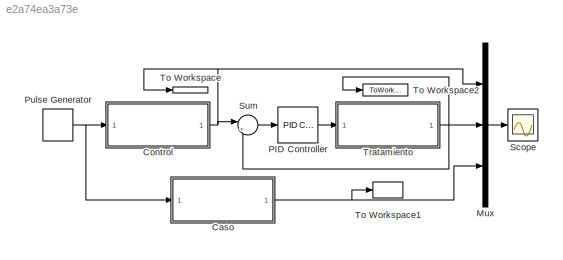
MODEL slx_e2a74ea3a73e
KIND model
CONFIG AbsTol = auto
CONFIG EnableMultiTasking = off
CONFIG FixedStep = auto
CONFIG MaxStep = 1E-3
CONFIG MinStep = auto
CONFIG RelTol = 1e-3
CONFIG SampleTimeConstraint = Unconstrained
CONFIG SolverName = ode15s
CONFIG StartTime = 0.0
CONFIG StopTime = 10.0
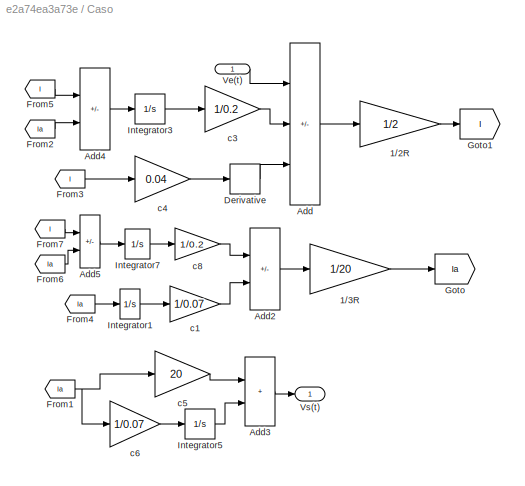
BLOCK [SubSystem] Caso
BLOCK [Gain] Caso/1//2R
  Gain = 1/2
BLOCK [Gain] Caso/1//3R
  Gain = 1/20
BLOCK [Sum] Caso/Add
  IconShape = rectangular
  Inputs = +--
BLOCK [Sum] Caso/Add2
  IconShape = rectangular
  Inputs = +-
BLOCK [Sum] Caso/Add3
  IconShape = rectangular
BLOCK [Sum] Caso/Add4
  IconShape = rectangular
  Inputs = +-
BLOCK [Sum] Caso/Add5
  IconShape = rectangular
  Inputs = +-
BLOCK [Derivative] Caso/Derivative
BLOCK [From] Caso/From1
  GotoTag = Ia
BLOCK [From] Caso/From2
  GotoTag = Ia
BLOCK [From] Caso/From3
  GotoTag = I
BLOCK [From] Caso/From4
  GotoTag = Ia
BLOCK [From] Caso/From5
  GotoTag = I
BLOCK [From] Caso/From6
  GotoTag = Ia
BLOCK [From] Caso/From7
  GotoTag = I
BLOCK [Goto] Caso/Goto
  GotoTag = Ia
BLOCK [Goto] Caso/Goto1
  GotoTag = I
BLOCK [Integrator] Caso/Integrator1
BLOCK [Integrator] Caso/Integrator3
BLOCK [Integrator] Caso/Integrator5
BLOCK [Integrator] Caso/Integrator7
BLOCK [Inport] Caso/Ve(t)
BLOCK [Outport] Caso/Vs(t)
BLOCK [Gain] Caso/c1
  Gain = 1/0.07
BLOCK [Gain] Caso/c3
  Gain = 1/0.2
BLOCK [Gain] Caso/c4
  Gain = 0.04
BLOCK [Gain] Caso/c5
  Gain = 20
BLOCK [Gain] Caso/c6
  Gain = 1/0.07
BLOCK [Gain] Caso/c8
  Gain = 1/0.2
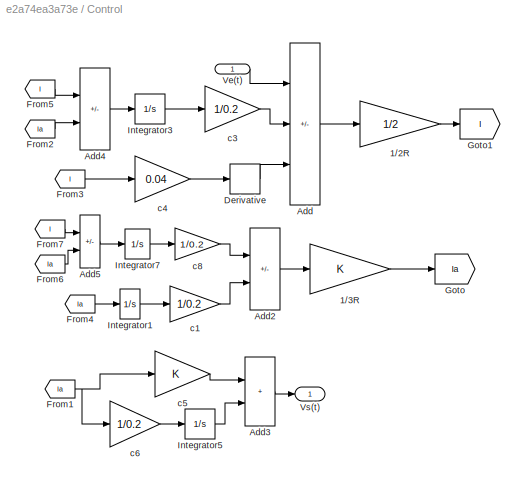
BLOCK [SubSystem] Control
BLOCK [Gain] Control/1//2R
  Gain = 1/2
BLOCK [Gain] Control/1//3R
BLOCK [Sum] Control/Add
  IconShape = rectangular
  Inputs = +--
BLOCK [Sum] Control/Add2
  IconShape = rectangular
  Inputs = +-
BLOCK [Sum] Control/Add3
  IconShape = rectangular
BLOCK [Sum] Control/Add4
  IconShape = rectangular
  Inputs = +-
BLOCK [Sum] Control/Add5
  IconShape = rectangular
  Inputs = +-
BLOCK [Derivative] Control/Derivative
BLOCK [From] Control/From1
  GotoTag = Ia
BLOCK [From] Control/From2
  GotoTag = Ia
BLOCK [From] Control/From3
  GotoTag = I
BLOCK [From] Control/From4
  GotoTag = Ia
BLOCK [From] Control/From5
  GotoTag = I
BLOCK [From] Control/From6
  GotoTag = Ia
BLOCK [From] Control/From7
  GotoTag = I
BLOCK [Goto] Control/Goto
  GotoTag = Ia
BLOCK [Goto] Control/Goto1
  GotoTag = I
BLOCK [Integrator] Control/Integrator1
BLOCK [Integrator] Control/Integrator3
BLOCK [Integrator] Control/Integrator5
BLOCK [Integrator] Control/Integrator7
BLOCK [Inport] Control/Ve(t)
BLOCK [Outport] Control/Vs(t)
BLOCK [Gain] Control/c1
  Gain = 1/0.2
BLOCK [Gain] Control/c3
  Gain = 1/0.2
BLOCK [Gain] Control/c4
  Gain = 0.04
BLOCK [Gain] Control/c5
BLOCK [Gain] Control/c6
  Gain = 1/0.2
BLOCK [Gain] Control/c8
  Gain = 1/0.2
BLOCK [Mux] Mux
  DisplayOption = bar
  Inputs = 3
BLOCK [Reference] PID Controller  REF=slpidlib/PID Controller
  LibrarySourceBlock = simulink/Continuous/PID Controller
  SourceBlock = slpidlib/PID Controller
  SourceType = PID 1dof
BLOCK [DiscretePulseGenerator] Pulse Generator
  Period = 10
  PhaseDelay = 1
  PulseType = Time based
  PulseWidth = 10
BLOCK [Scope] Scope
  Floating = off
  NumInputPorts = 1
  ScopeSpecificationString = Simulink.scopes.TimeScopeBlockCfg('CurrentConfiguration', extmgr.ConfigurationSet(extmgr.Configuration('Core','General UI',true,'FigureColor',[1 1 1]),extmgr.Configuration('Core','Source UI',true),extmgr.Configuration('Sources','WiredSimulink',true),extmgr.Configuration('Visuals','Time Domain',true,'SerializedDisplays',{struct('MinYLimReal','-0.10934','MaxYLimReal','0.9841','YLabelReal','','MinYLi...<+1863ch>
BLOCK [Sum] Sum
  Inputs = |+-
BLOCK [ToWorkspace] To Workspace
  FixptAsFi = on
  MaxDataPoints = inf
  SampleTime = -1
  VariableName = Ve
BLOCK [ToWorkspace] To Workspace1
  FixptAsFi = on
  MaxDataPoints = inf
  SampleTime = -1
  VariableName = Vs
BLOCK [ToWorkspace] To Workspace2
  FixptAsFi = on
  MaxDataPoints = inf
  SampleTime = -1
  VariableName = VPI
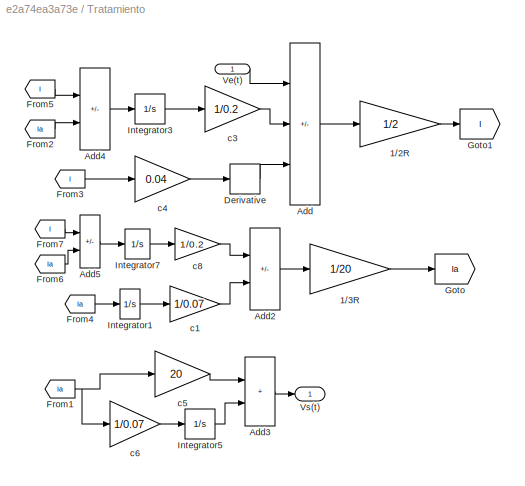
BLOCK [SubSystem] Tratamiento
BLOCK [Gain] Tratamiento/1//2R
  Gain = 1/2
BLOCK [Gain] Tratamiento/1//3R
  Gain = 1/20
BLOCK [Sum] Tratamiento/Add
  IconShape = rectangular
  Inputs = +--
BLOCK [Sum] Tratamiento/Add2
  IconShape = rectangular
  Inputs = +-
BLOCK [Sum] Tratamiento/Add3
  IconShape = rectangular
BLOCK [Sum] Tratamiento/Add4
  IconShape = rectangular
  Inputs = +-
BLOCK [Sum] Tratamiento/Add5
  IconShape = rectangular
  Inputs = +-
BLOCK [Derivative] Tratamiento/Derivative
BLOCK [From] Tratamiento/From1
  GotoTag = Ia
BLOCK [From] Tratamiento/From2
  GotoTag = Ia
BLOCK [From] Tratamiento/From3
  GotoTag = I
BLOCK [From] Tratamiento/From4
  GotoTag = Ia
BLOCK [From] Tratamiento/From5
  GotoTag = I
BLOCK [From] Tratamiento/From6
  GotoTag = Ia
BLOCK [From] Tratamiento/From7
  GotoTag = I
BLOCK [Goto] Tratamiento/Goto
  GotoTag = Ia
BLOCK [Goto] Tratamiento/Goto1
  GotoTag = I
BLOCK [Integrator] Tratamiento/Integrator1
BLOCK [Integrator] Tratamiento/Integrator3
BLOCK [Integrator] Tratamiento/Integrator5
BLOCK [Integrator] Tratamiento/Integrator7
BLOCK [Inport] Tratamiento/Ve(t)
BLOCK [Outport] Tratamiento/Vs(t)
BLOCK [Gain] Tratamiento/c1
  Gain = 1/0.07
BLOCK [Gain] Tratamiento/c3
  Gain = 1/0.2
BLOCK [Gain] Tratamiento/c4
  Gain = 0.04
BLOCK [Gain] Tratamiento/c5
  Gain = 20
BLOCK [Gain] Tratamiento/c6
  Gain = 1/0.07
BLOCK [Gain] Tratamiento/c8
  Gain = 1/0.2
LINE Caso/1//2R:1 -> Caso/Goto1:1
LINE Caso/1//3R:1 -> Caso/Goto:1
LINE Caso/Add2:1 -> Caso/1//3R:1
LINE Caso/Add3:1 -> Caso/Vs(t):1
LINE Caso/Add4:1 -> Caso/Integrator3:1
LINE Caso/Add5:1 -> Caso/Integrator7:1
LINE Caso/Add:1 -> Caso/1//2R:1
LINE Caso/Derivative:1 -> Caso/Add:3
NET Caso/From1:1 -> Caso/c5:1, Caso/c6:1
LINE Caso/From2:1 -> Caso/Add4:2
LINE Caso/From3:1 -> Caso/c4:1
LINE Caso/From4:1 -> Caso/Integrator1:1
LINE Caso/From5:1 -> Caso/Add4:1
LINE Caso/From6:1 -> Caso/Add5:2
LINE Caso/From7:1 -> Caso/Add5:1
LINE Caso/Integrator1:1 -> Caso/c1:1
LINE Caso/Integrator3:1 -> Caso/c3:1
LINE Caso/Integrator5:1 -> Caso/Add3:2
LINE Caso/Integrator7:1 -> Caso/c8:1
LINE Caso/Ve(t):1 -> Caso/Add:1
LINE Caso/c1:1 -> Caso/Add2:2
LINE Caso/c3:1 -> Caso/Add:2
LINE Caso/c4:1 -> Caso/Derivative:1
LINE Caso/c5:1 -> Caso/Add3:1
LINE Caso/c6:1 -> Caso/Integrator5:1
LINE Caso/c8:1 -> Caso/Add2:1
NET Caso:1 -> Mux:3, To Workspace1:1
LINE Control/1//2R:1 -> Control/Goto1:1
LINE Control/1//3R:1 -> Control/Goto:1
LINE Control/Add2:1 -> Control/1//3R:1
LINE Control/Add3:1 -> Control/Vs(t):1
LINE Control/Add4:1 -> Control/Integrator3:1
LINE Control/Add5:1 -> Control/Integrator7:1
LINE Control/Add:1 -> Control/1//2R:1
LINE Control/Derivative:1 -> Control/Add:3
NET Control/From1:1 -> Control/c5:1, Control/c6:1
LINE Control/From2:1 -> Control/Add4:2
LINE Control/From3:1 -> Control/c4:1
LINE Control/From4:1 -> Control/Integrator1:1
LINE Control/From5:1 -> Control/Add4:1
LINE Control/From6:1 -> Control/Add5:2
LINE Control/From7:1 -> Control/Add5:1
LINE Control/Integrator1:1 -> Control/c1:1
LINE Control/Integrator3:1 -> Control/c3:1
LINE Control/Integrator5:1 -> Control/Add3:2
LINE Control/Integrator7:1 -> Control/c8:1
LINE Control/Ve(t):1 -> Control/Add:1
LINE Control/c1:1 -> Control/Add2:2
LINE Control/c3:1 -> Control/Add:2
LINE Control/c4:1 -> Control/Derivative:1
LINE Control/c5:1 -> Control/Add3:1
LINE Control/c6:1 -> Control/Integrator5:1
LINE Control/c8:1 -> Control/Add2:1
NET Control:1 -> Mux:1, Sum:1, To Workspace:1
LINE Mux:1 -> Scope:1
LINE PID Controller:1 -> Tratamiento:1
NET Pulse Generator:1 -> Caso:1, Control:1
LINE Sum:1 -> PID Controller:1
LINE Tratamiento/1//2R:1 -> Tratamiento/Goto1:1
LINE Tratamiento/1//3R:1 -> Tratamiento/Goto:1
LINE Tratamiento/Add2:1 -> Tratamiento/1//3R:1
LINE Tratamiento/Add3:1 -> Tratamiento/Vs(t):1
LINE Tratamiento/Add4:1 -> Tratamiento/Integrator3:1
LINE Tratamiento/Add5:1 -> Tratamiento/Integrator7:1
LINE Tratamiento/Add:1 -> Tratamiento/1//2R:1
LINE Tratamiento/Derivative:1 -> Tratamiento/Add:3
NET Tratamiento/From1:1 -> Tratamiento/c5:1, Tratamiento/c6:1
LINE Tratamiento/From2:1 -> Tratamiento/Add4:2
LINE Tratamiento/From3:1 -> Tratamiento/c4:1
LINE Tratamiento/From4:1 -> Tratamiento/Integrator1:1
LINE Tratamiento/From5:1 -> Tratamiento/Add4:1
LINE Tratamiento/From6:1 -> Tratamiento/Add5:2
LINE Tratamiento/From7:1 -> Tratamiento/Add5:1
LINE Tratamiento/Integrator1:1 -> Tratamiento/c1:1
LINE Tratamiento/Integrator3:1 -> Tratamiento/c3:1
LINE Tratamiento/Integrator5:1 -> Tratamiento/Add3:2
LINE Tratamiento/Integrator7:1 -> Tratamiento/c8:1
LINE Tratamiento/Ve(t):1 -> Tratamiento/Add:1
LINE Tratamiento/c1:1 -> Tratamiento/Add2:2
LINE Tratamiento/c3:1 -> Tratamiento/Add:2
LINE Tratamiento/c4:1 -> Tratamiento/Derivative:1
LINE Tratamiento/c5:1 -> Tratamiento/Add3:1
LINE Tratamiento/c6:1 -> Tratamiento/Integrator5:1
LINE Tratamiento/c8:1 -> Tratamiento/Add2:1
NET Tratamiento:1 -> Mux:2, Sum:2, To Workspace2:1
note: NET lines group one-source signal fan-out (src -> all destinations, sorted); 1:1 wires keep LINE
